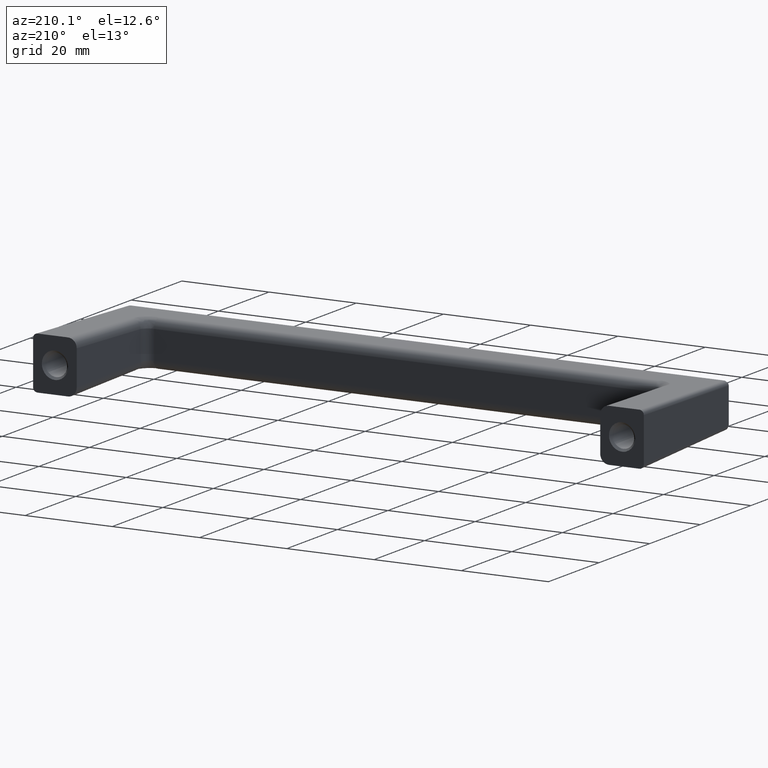
[diagram: clean part render]
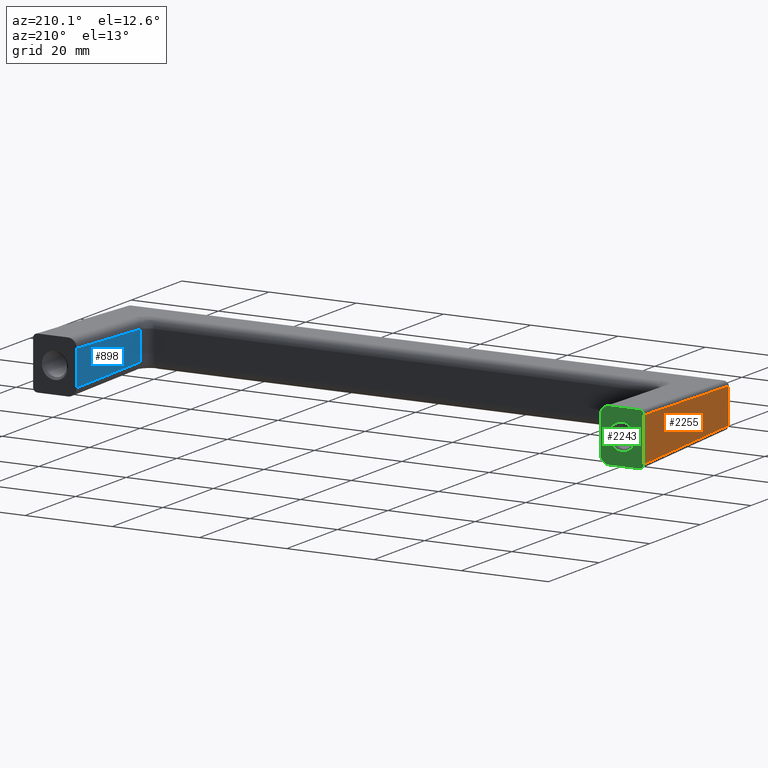
[diagram: same view with three faces highlighted in distinct colors, each labeled with its STEP entity id]
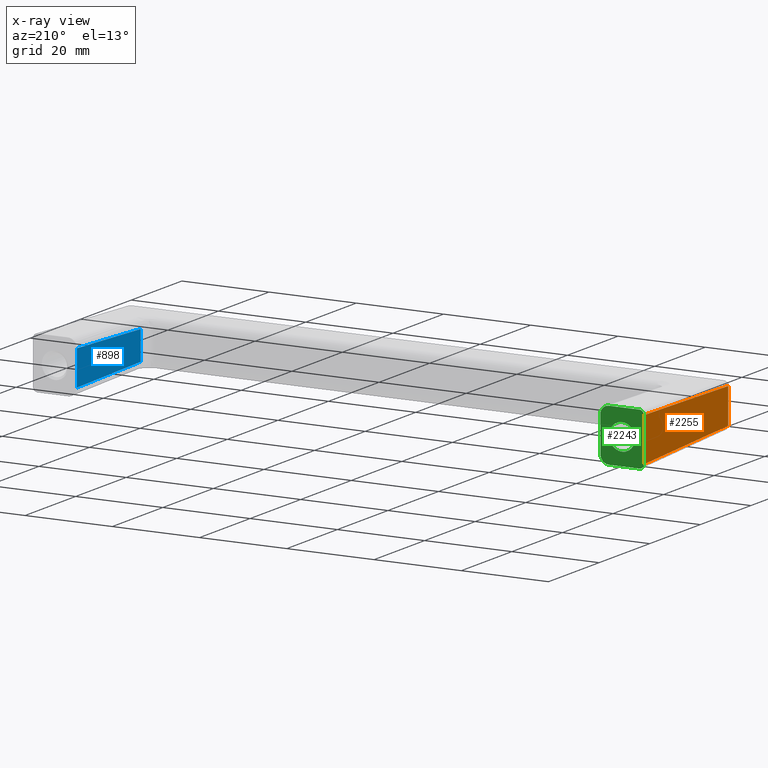
[diagram: x-ray of the same camera — body ghosted, the three highlighted faces saturated]
A machine part, auxiliary view with three faces highlighted in distinct colors.
The next image is the same camera in x-ray (body ghosted, the three faces saturated) — at least one of them is partly hidden behind the body in this view.
Their STEP definitions:

[orange] entity #2255 — the highlighted face is a freeform B-spline surface patch.
#1187=CARTESIAN_POINT('',(-69.027006470354394,-24.476048355387380,6.002305368511101));
#1188=VERTEX_POINT('',#1187);
#1288=CARTESIAN_POINT('',(-69.027006470354394,-24.476048355387380,14.057089467914681));
#1289=VERTEX_POINT('',#1288);
#1300=CARTESIAN_POINT('',(-69.027006470354394,-24.476048355387380,6.002305368511101));
#1301=CARTESIAN_POINT('',(-69.027006470354394,-24.476048355387380,14.057089467914681));
#1302=QUASI_UNIFORM_CURVE('',1,(#1300,#1301),.UNSPECIFIED.,.F.,.U.);
#1303=EDGE_CURVE('',#1188,#1289,#1302,.T.);
#1326=CARTESIAN_POINT('',(-70.0,10.551718711853029,5.029311838865661));
#1327=VERTEX_POINT('',#1326);
#1344=CARTESIAN_POINT('',(-70.0,10.551718711853029,5.029311838865661));
#1345=CARTESIAN_POINT('',(-69.027006470354394,-24.476048355387380,6.002305368511101));
#1346=QUASI_UNIFORM_CURVE('',1,(#1344,#1345),.UNSPECIFIED.,.F.,.U.);
#1347=EDGE_CURVE('',#1327,#1188,#1346,.T.);
#1413=CARTESIAN_POINT('',(-70.0,10.551718711853029,15.030082997560120));
#1414=VERTEX_POINT('',#1413);
#1425=CARTESIAN_POINT('',(-69.027006470354394,-24.476048355387380,14.057089467914681));
#1426=CARTESIAN_POINT('',(-70.0,10.551718711853029,15.030082997560120));
#1427=QUASI_UNIFORM_CURVE('',1,(#1425,#1426),.UNSPECIFIED.,.F.,.U.);
#1428=EDGE_CURVE('',#1289,#1414,#1427,.T.);
#2221=CARTESIAN_POINT('',(-70.0,10.551718711853029,15.030082997560120));
#2222=CARTESIAN_POINT('',(-70.0,10.551718711853029,5.029311838865661));
#2223=QUASI_UNIFORM_CURVE('',1,(#2221,#2222),.UNSPECIFIED.,.F.,.U.);
#2224=EDGE_CURVE('',#1414,#1327,#2223,.T.);
#2244=CARTESIAN_POINT('',(-68.978405445434532,-26.225685252505421,4.529773338872308));
#2245=CARTESIAN_POINT('',(-70.048601051017670,12.301356548489000,4.529773338872308));
#2246=CARTESIAN_POINT('',(-68.978405445434532,-26.225685252505421,15.529621765795060));
#2247=CARTESIAN_POINT('',(-70.048601051017670,12.301356548489000,15.529621765795060));
#2248=B_SPLINE_SURFACE_WITH_KNOTS('',1,1,((#2244,#2246),(#2245,#2247)),.UNSPECIFIED.,.F.,.F.,.U.,(2,2),(2,2),(0.0,38.541902762704659),(0.0,10.999848426922750),.UNSPECIFIED.);
#2249=ORIENTED_EDGE('',*,*,#1303,.T.);
#2250=ORIENTED_EDGE('',*,*,#1428,.T.);
#2251=ORIENTED_EDGE('',*,*,#2224,.T.);
#2252=ORIENTED_EDGE('',*,*,#1347,.T.);
#2253=EDGE_LOOP('',(#2249,#2250,#2251,#2252));
#2254=FACE_OUTER_BOUND('',#2253,.T.);
#2255=ADVANCED_FACE('',(#2254),#2248,.F.);

[blue] entity #898 — the highlighted face is a freeform B-spline surface patch.
#737=CARTESIAN_POINT('',(59.999600000000001,10.551718711853029,6.032013149206295));
#738=VERTEX_POINT('',#737);
#751=CARTESIAN_POINT('',(59.999600000000001,10.551718711853029,14.027381687219600));
#752=VERTEX_POINT('',#751);
#753=CARTESIAN_POINT('',(59.999600000000001,10.551718711853029,14.027381687219600));
#754=CARTESIAN_POINT('',(59.999600000000001,10.551718711853029,6.032013149206295));
#755=QUASI_UNIFORM_CURVE('',1,(#753,#754),.UNSPECIFIED.,.F.,.U.);
#756=EDGE_CURVE('',#752,#738,#755,.T.);
#871=CARTESIAN_POINT('',(59.297256366868417,-14.705452050828310,5.632644506229108));
#872=CARTESIAN_POINT('',(60.033013097782487,11.753296225469519,5.632644506229108));
#873=CARTESIAN_POINT('',(59.297256366868417,-14.705452050828310,14.426750544649281));
#874=CARTESIAN_POINT('',(60.033013097782487,11.753296225469519,14.426750544649281));
#875=B_SPLINE_SURFACE_WITH_KNOTS('',1,1,((#871,#873),(#872,#874)),.UNSPECIFIED.,.F.,.F.,.U.,(2,2),(2,2),(0.0,26.468976147852391),(0.0,8.794106038420171),.UNSPECIFIED.);
#876=CARTESIAN_POINT('',(59.330669446708612,-13.503875182433120,6.700224090714196));
#877=VERTEX_POINT('',#876);
#878=CARTESIAN_POINT('',(59.330669446708612,-13.503875182433120,13.359170745711671));
#879=VERTEX_POINT('',#878);
#880=CARTESIAN_POINT('',(59.330669446708612,-13.503875182433120,6.700224090714196));
#881=CARTESIAN_POINT('',(59.330669446708612,-13.503875182433120,13.359170745711671));
#882=QUASI_UNIFORM_CURVE('',1,(#880,#881),.UNSPECIFIED.,.F.,.U.);
#883=EDGE_CURVE('',#877,#879,#882,.T.);
#884=ORIENTED_EDGE('',*,*,#883,.T.);
#885=CARTESIAN_POINT('',(59.330669446708612,-13.503875182433120,13.359170745711671));
#886=CARTESIAN_POINT('',(59.999600000000001,10.551718711853029,14.027381687219600));
#887=QUASI_UNIFORM_CURVE('',1,(#885,#886),.UNSPECIFIED.,.F.,.U.);
#888=EDGE_CURVE('',#879,#752,#887,.T.);
#889=ORIENTED_EDGE('',*,*,#888,.T.);
#890=ORIENTED_EDGE('',*,*,#756,.T.);
#891=CARTESIAN_POINT('',(59.999600000000001,10.551718711853029,6.032013149206295));
#892=CARTESIAN_POINT('',(59.330669446708612,-13.503875182433120,6.700224090714196));
#893=QUASI_UNIFORM_CURVE('',1,(#891,#892),.UNSPECIFIED.,.F.,.U.);
#894=EDGE_CURVE('',#738,#877,#893,.T.);
#895=ORIENTED_EDGE('',*,*,#894,.T.);
#896=EDGE_LOOP('',(#884,#889,#890,#895));
#897=FACE_OUTER_BOUND('',#896,.T.);
#898=ADVANCED_FACE('',(#897),#875,.F.);

[green] entity #2243 — the highlighted face is a freeform B-spline surface patch.
#459=CARTESIAN_POINT('',(-67.139750728007840,10.551718422353691,7.926970234053592));
#460=VERTEX_POINT('',#459);
#466=CARTESIAN_POINT('',(-68.0,10.551718711853029,10.029697418212891));
#467=VERTEX_POINT('',#466);
#468=CARTESIAN_POINT('',(-68.0,10.551718711853029,10.029697418212891));
#469=CARTESIAN_POINT('',(-68.000541437996119,10.551718655034691,9.617007507778713));
#470=CARTESIAN_POINT('',(-67.836980791234339,10.551718548173939,8.840843371220316));
#471=CARTESIAN_POINT('',(-67.395185856911311,10.551718458079421,8.186457803478012));
#472=CARTESIAN_POINT('',(-67.139750728007840,10.551718422353691,7.926970234053592));
#473=B_SPLINE_CURVE_WITH_KNOTS('',3,(#468,#469,#470,#471,#472),.UNSPECIFIED.,.F.,.U.,(4,1,4),(0.000000070933590,1.237832886456278,2.330071391147499),.UNSPECIFIED.);
#474=EDGE_CURVE('',#467,#460,#473,.T.);
#476=CARTESIAN_POINT('',(-65.000002316347135,10.551718711853029,13.029697418212001));
#477=VERTEX_POINT('',#476);
#478=CARTESIAN_POINT('',(-65.000002316347135,10.551718711853029,13.029697418212001));
#479=CARTESIAN_POINT('',(-65.319094806236848,10.551718711853029,13.029874705722021));
#480=CARTESIAN_POINT('',(-65.809843974500879,10.551718711853029,12.950611971226961));
#481=CARTESIAN_POINT('',(-66.466476432811078,10.551718711853029,12.669104062191851));
#482=CARTESIAN_POINT('',(-66.955128120576077,10.551718711853029,12.333813959704770));
#483=CARTESIAN_POINT('',(-67.482526844171787,10.551718711853029,11.780238897105750));
#484=CARTESIAN_POINT('',(-67.893365418157927,10.551718711853029,11.011415911818590));
#485=CARTESIAN_POINT('',(-68.000133745921417,10.551718711853029,10.348771761937060));
#486=CARTESIAN_POINT('',(-68.0,10.551718711853029,10.029697418212891));
#487=B_SPLINE_CURVE_WITH_KNOTS('',3,(#478,#479,#480,#481,#482,#483,#484,#485,#486),.UNSPECIFIED.,.F.,.U.,(4,1,1,1,1,1,4),(0.000000211223495,0.957219347599480,1.472673591809974,2.135399984686709,2.724383230374364,3.755278434187624,4.712505927450060),.UNSPECIFIED.);
#488=EDGE_CURVE('',#477,#467,#487,.T.);
#490=CARTESIAN_POINT('',(-62.860249271992160,10.551718422353691,12.132424602372190));
#491=VERTEX_POINT('',#490);
#492=CARTESIAN_POINT('',(-62.860249271992160,10.551718422353691,12.132424602372190));
#493=CARTESIAN_POINT('',(-63.120951492651017,10.551718457625549,12.398206791145370));
#494=CARTESIAN_POINT('',(-63.784479789413822,10.551718547398050,12.859131654454711));
#495=CARTESIAN_POINT('',(-64.578019876075629,10.551718654760609,13.030310464653530));
#496=CARTESIAN_POINT('',(-65.000002316347135,10.551718711853029,13.029697418212001));
#497=B_SPLINE_CURVE_WITH_KNOTS('',3,(#492,#493,#494,#495,#496),.UNSPECIFIED.,.F.,.U.,(4,1,4),(0.000000055441820,1.116778609376097,2.382437518912500),.UNSPECIFIED.);
#498=EDGE_CURVE('',#491,#477,#497,.T.);
#534=CARTESIAN_POINT('',(-62.0,10.551718711853029,10.029697418212891));
#535=VERTEX_POINT('',#534);
#536=CARTESIAN_POINT('',(-62.0,10.551718711853029,10.029697418212891));
#537=CARTESIAN_POINT('',(-61.999968851817783,10.551718681778420,10.248138995134299));
#538=CARTESIAN_POINT('',(-62.050570940975120,10.551718618290771,10.709270281377909));
#539=CARTESIAN_POINT('',(-62.311255776296093,10.551718516724730,11.446977238746641));
#540=CARTESIAN_POINT('',(-62.638985140720280,10.551718453326110,11.907461874243950));
#541=CARTESIAN_POINT('',(-62.860249271992160,10.551718422353691,12.132424602372190));
#542=B_SPLINE_CURVE_WITH_KNOTS('',3,(#536,#537,#538,#539,#540,#541),.UNSPECIFIED.,.F.,.U.,(4,1,1,4),(0.000000070932753,0.655336688056994,1.383459983764867,2.330071391147497),.UNSPECIFIED.);
#543=EDGE_CURVE('',#535,#491,#542,.T.);
#545=CARTESIAN_POINT('',(-64.999997683652879,10.551718711853029,7.029697418213785));
#546=VERTEX_POINT('',#545);
#547=CARTESIAN_POINT('',(-64.999997683652879,10.551718711853029,7.029697418213785));
#548=CARTESIAN_POINT('',(-64.680904130290443,10.551718711853029,7.029519804543124));
#549=CARTESIAN_POINT('',(-64.190159146717392,10.551718711853029,7.108783841795917));
#550=CARTESIAN_POINT('',(-63.533518663007811,10.551718711853029,7.390289298567295));
#551=CARTESIAN_POINT('',(-63.044847854933629,10.551718711853029,7.725564599376096));
#552=CARTESIAN_POINT('',(-62.551626947817802,10.551718711853029,8.243519584358428));
#553=CARTESIAN_POINT('',(-62.123521767157122,10.551718711853029,8.998998701081879));
#554=CARTESIAN_POINT('',(-61.999702183028752,10.551718711853029,9.661519411107021));
#555=CARTESIAN_POINT('',(-62.0,10.551718711853029,10.029697418212891));
#556=B_SPLINE_CURVE_WITH_KNOTS('',3,(#547,#548,#549,#550,#551,#552,#553,#554,#555),.UNSPECIFIED.,.F.,.U.,(4,1,1,1,1,1,4),(0.000000211221249,0.957219347596822,1.472673591807820,2.135399984685336,2.724383230373267,3.608016520621278,4.712505927450189),.UNSPECIFIED.);
#557=EDGE_CURVE('',#546,#535,#556,.T.);
#559=CARTESIAN_POINT('',(-67.139750728007840,10.551718422353691,7.926970234053592));
#560=CARTESIAN_POINT('',(-66.879046548671283,10.551718457625819,7.661185558384478));
#561=CARTESIAN_POINT('',(-66.215528313954721,10.551718547396950,7.200259778343338));
#562=CARTESIAN_POINT('',(-65.421974399350546,10.551718654761380,7.029104434998435));
#563=CARTESIAN_POINT('',(-64.999997683652879,10.551718711853029,7.029697418213785));
#564=B_SPLINE_CURVE_WITH_KNOTS('',3,(#559,#560,#561,#562,#563),.UNSPECIFIED.,.F.,.U.,(4,1,4),(0.000000055442835,1.116778609376199,2.382437518912483),.UNSPECIFIED.);
#565=EDGE_CURVE('',#460,#546,#564,.T.);
#804=CARTESIAN_POINT('',(-60.0,10.551718711853029,14.027383394642470));
#805=VERTEX_POINT('',#804);
#806=CARTESIAN_POINT('',(-60.0,10.551718711853029,6.032011441783200));
#807=VERTEX_POINT('',#806);
#808=CARTESIAN_POINT('',(-60.0,10.551718711853029,14.027383394642470));
#809=CARTESIAN_POINT('',(-60.0,10.551718711853029,6.032011441783200));
#810=QUASI_UNIFORM_CURVE('',1,(#808,#809),.UNSPECIFIED.,.F.,.U.);
#811=EDGE_CURVE('',#805,#807,#810,.T.);
#1324=CARTESIAN_POINT('',(-69.000385579347309,10.551718711853029,4.029697418212891));
#1325=VERTEX_POINT('',#1324);
#1326=CARTESIAN_POINT('',(-70.0,10.551718711853029,5.029311838865661));
#1327=VERTEX_POINT('',#1326);
#1328=CARTESIAN_POINT('',(-69.000385579347309,10.551718711853029,4.029697418212891));
#1329=CARTESIAN_POINT('',(-69.131248427650249,10.551718711853029,4.029585874505990));
#1330=CARTESIAN_POINT('',(-69.392812745421978,10.551718711853029,4.081871201082453));
#1331=CARTESIAN_POINT('',(-69.725624616824959,10.551718711853029,4.304099243573557));
#1332=CARTESIAN_POINT('',(-69.947859513753059,10.551718711853029,4.636863924552932));
#1333=CARTESIAN_POINT('',(-70.000156290493550,10.551718711853029,4.898447081520048));
#1334=CARTESIAN_POINT('',(-70.0,10.551718711853029,5.029311838865661));
#1335=B_SPLINE_CURVE_WITH_KNOTS('',3,(#1328,#1329,#1330,#1331,#1332,#1333,#1334),.UNSPECIFIED.,.F.,.U.,(4,1,1,1,4),(-0.000000610192939,0.392570622619712,0.785139280660211,1.177707988685637,1.570277383831716),.UNSPECIFIED.);
#1336=EDGE_CURVE('',#1325,#1327,#1335,.T.);
#1406=CARTESIAN_POINT('',(-69.000385579347196,10.551718711853029,16.029697418212891));
#1407=VERTEX_POINT('',#1406);
#1413=CARTESIAN_POINT('',(-70.0,10.551718711853029,15.030082997560120));
#1414=VERTEX_POINT('',#1413);
#1415=CARTESIAN_POINT('',(-70.0,10.551718711853029,15.030082997560120));
#1416=CARTESIAN_POINT('',(-70.000111836760340,10.551718711853029,15.160948040888240));
#1417=CARTESIAN_POINT('',(-69.947825984738529,10.551718711853029,15.422509193196589));
#1418=CARTESIAN_POINT('',(-69.725598237461341,10.551718711853029,15.755322161203660));
#1419=CARTESIAN_POINT('',(-69.392833479375184,10.551718711853029,15.977556979541401));
#1420=CARTESIAN_POINT('',(-69.131250343423432,10.551718711853029,16.029853691400199));
#1421=CARTESIAN_POINT('',(-69.000385579347196,10.551718711853029,16.029697418212891));
#1422=B_SPLINE_CURVE_WITH_KNOTS('',3,(#1415,#1416,#1417,#1418,#1419,#1420,#1421),.UNSPECIFIED.,.F.,.U.,(4,1,1,1,4),(-0.000000610189195,0.392570622622360,0.785139280661476,1.177707988686093,1.570277383831754),.UNSPECIFIED.);
#1423=EDGE_CURVE('',#1414,#1407,#1422,.T.);
#2003=CARTESIAN_POINT('',(-62.002313976069402,10.551718711853029,16.029697418212891));
#2004=VERTEX_POINT('',#2003);
#2005=CARTESIAN_POINT('',(-62.002313976069402,10.551718711853029,16.029697418212891));
#2006=CARTESIAN_POINT('',(-61.690992326375323,10.551718711853029,16.030162220013281));
#2007=CARTESIAN_POINT('',(-61.150964523693730,10.551718711853029,15.900958092792070));
#2008=CARTESIAN_POINT('',(-60.550179696327781,10.551718711853029,15.455192471559631));
#2009=CARTESIAN_POINT('',(-60.120993945142018,10.551718711853029,14.845960278811480));
#2010=CARTESIAN_POINT('',(-59.999526331842397,10.551718711853029,14.338727468437220));
#2011=CARTESIAN_POINT('',(-60.0,10.551718711853029,14.027383394642470));
#2012=B_SPLINE_CURVE_WITH_KNOTS('',3,(#2005,#2006,#2007,#2008,#2009,#2010,#2011),.UNSPECIFIED.,.F.,.U.,(4,1,1,1,4),(0.000000332215426,0.933724239283967,1.621679822299587,2.211444974626441,3.145169106012246),.UNSPECIFIED.);
#2013=EDGE_CURVE('',#2004,#805,#2012,.T.);
#2150=CARTESIAN_POINT('',(-62.002313976069502,10.551718711853029,4.029697418212891));
#2151=VERTEX_POINT('',#2150);
#2157=CARTESIAN_POINT('',(-60.0,10.551718711853029,6.032011441783200));
#2158=CARTESIAN_POINT('',(-59.999851884232392,10.551718711853029,5.786285118404122));
#2159=CARTESIAN_POINT('',(-60.082531767702719,10.551718711853029,5.344122607394874));
#2160=CARTESIAN_POINT('',(-60.368283788641570,10.551718711853029,4.839920046837956));
#2161=CARTESIAN_POINT('',(-60.708822660410164,10.551718711853029,4.482336140013405));
#2162=CARTESIAN_POINT('',(-61.216479976197199,10.551718711853029,4.142863118865948));
#2163=CARTESIAN_POINT('',(-61.690957179951127,10.551718711853029,4.029184744042158));
#2164=CARTESIAN_POINT('',(-62.002313976069502,10.551718711853029,4.029697418212891));
#2165=B_SPLINE_CURVE_WITH_KNOTS('',3,(#2157,#2158,#2159,#2160,#2161,#2162,#2163,#2164),.UNSPECIFIED.,.F.,.U.,(4,1,1,1,1,4),(0.000000332220682,0.737147794020077,1.326911215593257,1.719996428589780,2.211444974627550,3.145169106012267),.UNSPECIFIED.);
#2166=EDGE_CURVE('',#807,#2151,#2165,.T.);
#2181=CARTESIAN_POINT('',(-62.002313976069502,10.551718711853029,4.029697418212891));
#2182=CARTESIAN_POINT('',(-69.000385579347309,10.551718711853029,4.029697418212891));
#2183=QUASI_UNIFORM_CURVE('',1,(#2181,#2182),.UNSPECIFIED.,.F.,.U.);
#2184=EDGE_CURVE('',#2151,#1325,#2183,.T.);
#2207=CARTESIAN_POINT('',(-62.002313976069402,10.551718711853029,16.029697418212891));
#2208=CARTESIAN_POINT('',(-69.000385579347196,10.551718711853029,16.029697418212891));
#2209=QUASI_UNIFORM_CURVE('',1,(#2207,#2208),.UNSPECIFIED.,.F.,.U.);
#2210=EDGE_CURVE('',#2004,#1407,#2209,.T.);
#2216=CARTESIAN_POINT('',(-70.499499980618054,10.551718711853029,3.430297441471218));
#2217=CARTESIAN_POINT('',(-59.500499751161037,10.551718711853029,3.430297441471218));
#2218=CARTESIAN_POINT('',(-70.499499980618054,10.551718711853029,16.629097716819640));
#2219=CARTESIAN_POINT('',(-59.500499751161037,10.551718711853029,16.629097716819640));
#2220=B_SPLINE_SURFACE_WITH_KNOTS('',1,1,((#2216,#2218),(#2217,#2219)),.UNSPECIFIED.,.F.,.F.,.U.,(2,2),(2,2),(0.0,10.999000229457019),(0.0,13.198800275348431),.UNSPECIFIED.);
#2221=CARTESIAN_POINT('',(-70.0,10.551718711853029,15.030082997560120));
#2222=CARTESIAN_POINT('',(-70.0,10.551718711853029,5.029311838865661));
#2223=QUASI_UNIFORM_CURVE('',1,(#2221,#2222),.UNSPECIFIED.,.F.,.U.);
#2224=EDGE_CURVE('',#1414,#1327,#2223,.T.);
#2225=ORIENTED_EDGE('',*,*,#2224,.F.);
#2226=ORIENTED_EDGE('',*,*,#1423,.T.);
#2227=ORIENTED_EDGE('',*,*,#2210,.F.);
#2228=ORIENTED_EDGE('',*,*,#2013,.T.);
#2229=ORIENTED_EDGE('',*,*,#811,.T.);
#2230=ORIENTED_EDGE('',*,*,#2166,.T.);
#2231=ORIENTED_EDGE('',*,*,#2184,.T.);
#2232=ORIENTED_EDGE('',*,*,#1336,.T.);
#2233=EDGE_LOOP('',(#2225,#2226,#2227,#2228,#2229,#2230,#2231,#2232));
#2234=FACE_OUTER_BOUND('',#2233,.T.);
#2235=ORIENTED_EDGE('',*,*,#488,.T.);
#2236=ORIENTED_EDGE('',*,*,#474,.T.);
#2237=ORIENTED_EDGE('',*,*,#565,.T.);
#2238=ORIENTED_EDGE('',*,*,#557,.T.);
#2239=ORIENTED_EDGE('',*,*,#543,.T.);
#2240=ORIENTED_EDGE('',*,*,#498,.T.);
#2241=EDGE_LOOP('',(#2235,#2236,#2237,#2238,#2239,#2240));
#2242=FACE_BOUND('',#2241,.T.);
#2243=ADVANCED_FACE('',(#2234,#2242),#2220,.F.);